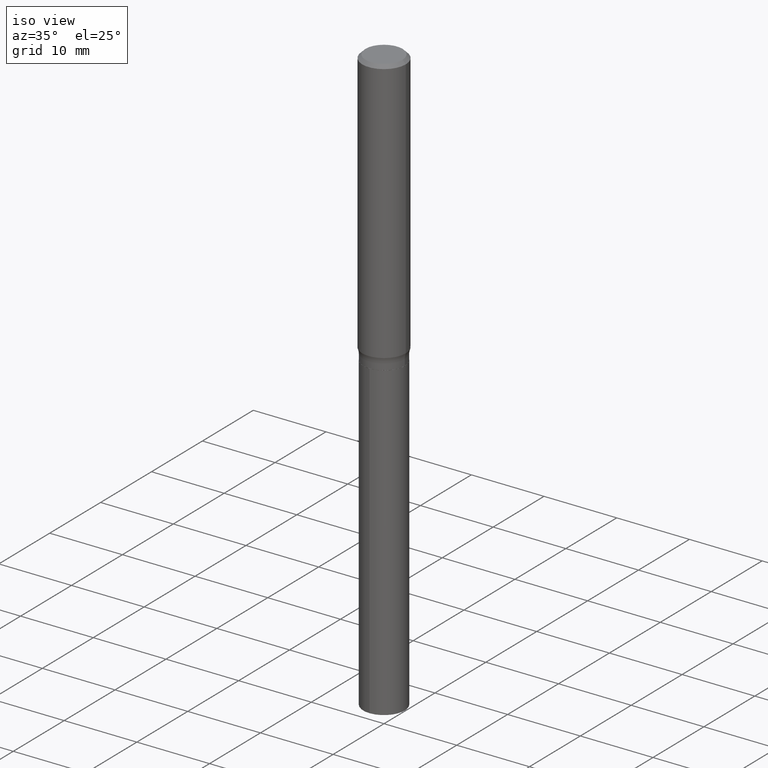
[diagram: clean part render]
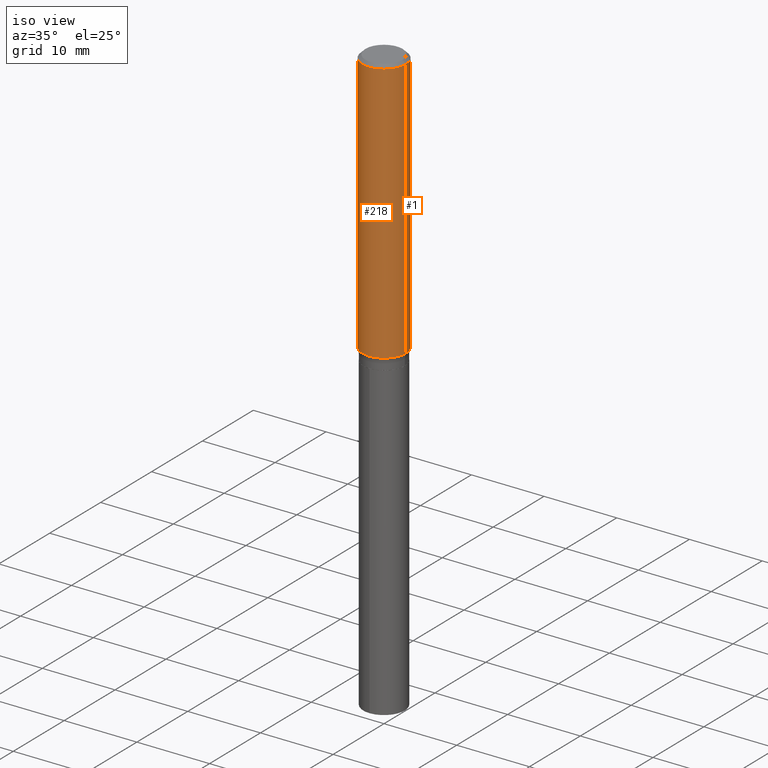
[diagram: same view with one multi-face feature highlighted, each face labeled with its STEP entity id]
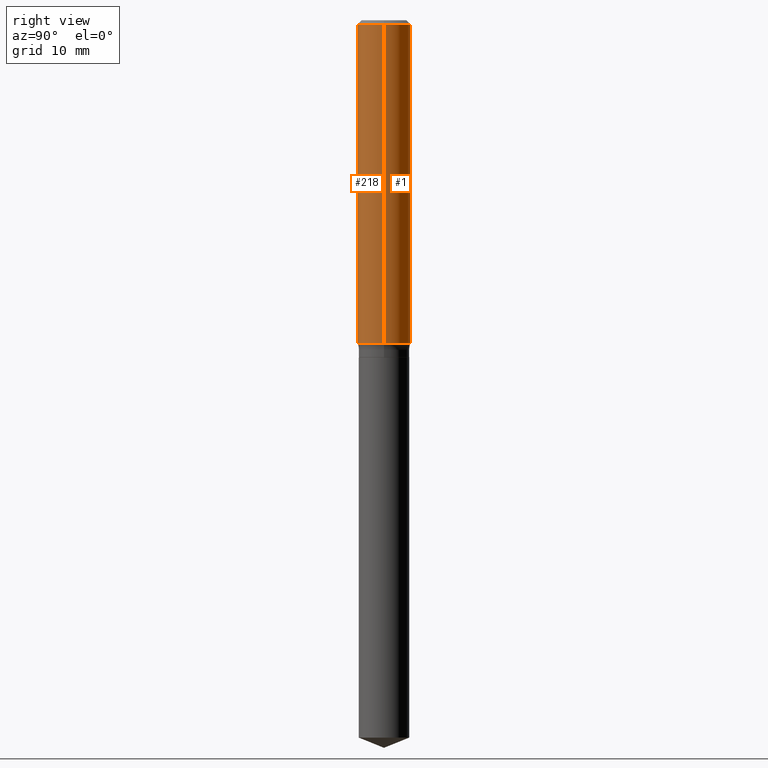
[diagram: same view with one multi-face feature highlighted, each face labeled with its STEP entity id]
A machine part, iso view. The highlighted faces form ONE feature: a constant-radius fillet chain: 2 tangent blend faces with common blend radius 2.9997 mm. The faces share edges in the B-rep.
A second angle (right view) of the same feature is appended — it is thin or edge-on in the first view.
Their STEP definitions:
[1] entity #218 (Cylinder):
#4 = VERTEX_POINT ( 'NONE', #216 ) ;
#13 = CARTESIAN_POINT ( 'NONE',  ( 3.502501020471370569E-29, -5.000643198279692524E-15, -1.432241135774360963 ) ) ;
#40 = AXIS2_PLACEMENT_3D ( 'NONE', #161, #74, #483 ) ;
#46 = EDGE_CURVE ( 'NONE', #348, #91, #439, .T. ) ;
#53 = EDGE_CURVE ( 'NONE', #4, #351, #185, .T. ) ;
#57 = DIRECTION ( 'NONE',  ( -2.445468806185136597E-29, 3.491481338843145583E-15, 1.000000000000000000 ) ) ;
#72 = DIRECTION ( 'NONE',  ( -2.445468806185136597E-29, 3.491481338843145583E-15, 1.000000000000000000 ) ) ;
#74 = DIRECTION ( 'NONE',  ( -2.445468806185136597E-29, 3.491481338843145583E-15, 1.000000000000000000 ) ) ;
#87 = CARTESIAN_POINT ( 'NONE',  ( 0.1181000000000002048, -5.825331090514442364E-15, -1.432241135774360963 ) ) ;
#91 = VERTEX_POINT ( 'NONE', #432 ) ;
#95 = AXIS2_PLACEMENT_3D ( 'NONE', #411, #72, #187 ) ;
#98 = ORIENTED_EDGE ( 'NONE', *, *, #455, .T. ) ;
#104 = CIRCLE ( 'NONE', #95, 0.1180999999999999966 ) ;
#134 = DIRECTION ( 'NONE',  ( -2.445468806185136877E-29, 3.491481338843145188E-15, 1.000000000000000000 ) ) ;
#140 = EDGE_CURVE ( 'NONE', #351, #91, #104, .T. ) ;
#161 = CARTESIAN_POINT ( 'NONE',  ( 0.000000000000000000, 0.000000000000000000, 0.000000000000000000 ) ) ;
#175 = CARTESIAN_POINT ( 'NONE',  ( 0.1181000000000001077, -8.246878922347488542E-16, 5.758764772215005345E-30 ) ) ;
#177 = DIRECTION ( 'NONE',  ( -2.445468806185136877E-29, 3.491481338843145188E-15, 1.000000000000000000 ) ) ;
#185 = LINE ( 'NONE', #250, #327 ) ;
#187 = DIRECTION ( 'NONE',  ( 1.000000000000000000, -6.982962677686266711E-15, 0.000000000000000000 ) ) ;
#216 = CARTESIAN_POINT ( 'NONE',  ( -0.1181000000000002048, -4.161492227347013538E-15, -1.432241135774360963 ) ) ;
#218 = ADVANCED_FACE ( 'NONE', ( #492 ), #453, .T. ) ;
#236 = VECTOR ( 'NONE', #134, 39.37007874015748143 ) ;
#250 = CARTESIAN_POINT ( 'NONE',  ( -0.1181000000000001077, 8.391509709326790846E-16, -5.809262341591049389E-30 ) ) ;
#298 = DIRECTION ( 'NONE',  ( 1.000000000000000000, -6.982962677686269077E-15, 0.000000000000000000 ) ) ;
#327 = VECTOR ( 'NONE', #177, 39.37007874015748143 ) ;
#348 = VERTEX_POINT ( 'NONE', #87 ) ;
#351 = VERTEX_POINT ( 'NONE', #362 ) ;
#353 = ORIENTED_EDGE ( 'NONE', *, *, #140, .F. ) ;
#362 = CARTESIAN_POINT ( 'NONE',  ( -0.1180999999999999966, -1.692096424165969981E-15, -0.01771500000000010913 ) ) ;
#386 = ORIENTED_EDGE ( 'NONE', *, *, #53, .F. ) ;
#411 = CARTESIAN_POINT ( 'NONE',  ( 4.332147990156996744E-31, -6.185159191760670395E-17, -0.01771500000000010913 ) ) ;
#421 = CIRCLE ( 'NONE', #443, 0.1181000000000001909 ) ;
#423 = ORIENTED_EDGE ( 'NONE', *, *, #46, .T. ) ;
#432 = CARTESIAN_POINT ( 'NONE',  ( 0.1180999999999999966, -8.865394841523547570E-16, -0.01771500000000010913 ) ) ;
#439 = LINE ( 'NONE', #175, #236 ) ;
#443 = AXIS2_PLACEMENT_3D ( 'NONE', #13, #57, #298 ) ;
#453 = CYLINDRICAL_SURFACE ( 'NONE', #40, 0.1181000000000001077 ) ;
#455 = EDGE_CURVE ( 'NONE', #4, #348, #421, .T. ) ;
#467 = EDGE_LOOP ( 'NONE', ( #386, #98, #423, #353 ) ) ;
#483 = DIRECTION ( 'NONE',  ( 1.000000000000000000, -6.982962677686266711E-15, 4.876176775795935793E-29 ) ) ;
#492 = FACE_OUTER_BOUND ( 'NONE', #467, .T. ) ;
[2] entity #1 (Cylinder):
#1 = ADVANCED_FACE ( 'NONE', ( #329 ), #213, .T. ) ;
#4 = VERTEX_POINT ( 'NONE', #216 ) ;
#39 = ORIENTED_EDGE ( 'NONE', *, *, #46, .F. ) ;
#42 = EDGE_CURVE ( 'NONE', #91, #351, #419, .T. ) ;
#46 = EDGE_CURVE ( 'NONE', #348, #91, #439, .T. ) ;
#53 = EDGE_CURVE ( 'NONE', #4, #351, #185, .T. ) ;
#54 = DIRECTION ( 'NONE',  ( 1.000000000000000000, -6.982962677686266711E-15, 4.876176775795935793E-29 ) ) ;
#61 = AXIS2_PLACEMENT_3D ( 'NONE', #144, #407, #289 ) ;
#81 = EDGE_CURVE ( 'NONE', #348, #4, #137, .T. ) ;
#87 = CARTESIAN_POINT ( 'NONE',  ( 0.1181000000000002048, -5.825331090514442364E-15, -1.432241135774360963 ) ) ;
#91 = VERTEX_POINT ( 'NONE', #432 ) ;
#94 = DIRECTION ( 'NONE',  ( -2.445468806185136597E-29, 3.491481338843145583E-15, 1.000000000000000000 ) ) ;
#134 = DIRECTION ( 'NONE',  ( -2.445468806185136877E-29, 3.491481338843145188E-15, 1.000000000000000000 ) ) ;
#137 = CIRCLE ( 'NONE', #61, 0.1181000000000001909 ) ;
#144 = CARTESIAN_POINT ( 'NONE',  ( 3.502501020471370569E-29, -5.000643198279692524E-15, -1.432241135774360963 ) ) ;
#154 = EDGE_LOOP ( 'NONE', ( #454, #273, #179, #39 ) ) ;
#175 = CARTESIAN_POINT ( 'NONE',  ( 0.1181000000000001077, -8.246878922347488542E-16, 5.758764772215005345E-30 ) ) ;
#177 = DIRECTION ( 'NONE',  ( -2.445468806185136877E-29, 3.491481338843145188E-15, 1.000000000000000000 ) ) ;
#179 = ORIENTED_EDGE ( 'NONE', *, *, #42, .F. ) ;
#185 = LINE ( 'NONE', #250, #327 ) ;
#201 = AXIS2_PLACEMENT_3D ( 'NONE', #333, #366, #54 ) ;
#213 = CYLINDRICAL_SURFACE ( 'NONE', #201, 0.1181000000000001077 ) ;
#216 = CARTESIAN_POINT ( 'NONE',  ( -0.1181000000000002048, -4.161492227347013538E-15, -1.432241135774360963 ) ) ;
#236 = VECTOR ( 'NONE', #134, 39.37007874015748143 ) ;
#250 = CARTESIAN_POINT ( 'NONE',  ( -0.1181000000000001077, 8.391509709326790846E-16, -5.809262341591049389E-30 ) ) ;
#273 = ORIENTED_EDGE ( 'NONE', *, *, #53, .T. ) ;
#289 = DIRECTION ( 'NONE',  ( 1.000000000000000000, -6.982962677686269077E-15, 0.000000000000000000 ) ) ;
#327 = VECTOR ( 'NONE', #177, 39.37007874015748143 ) ;
#329 = FACE_OUTER_BOUND ( 'NONE', #154, .T. ) ;
#333 = CARTESIAN_POINT ( 'NONE',  ( 0.000000000000000000, 0.000000000000000000, 0.000000000000000000 ) ) ;
#348 = VERTEX_POINT ( 'NONE', #87 ) ;
#351 = VERTEX_POINT ( 'NONE', #362 ) ;
#362 = CARTESIAN_POINT ( 'NONE',  ( -0.1180999999999999966, -1.692096424165969981E-15, -0.01771500000000010913 ) ) ;
#366 = DIRECTION ( 'NONE',  ( -2.445468806185136597E-29, 3.491481338843145583E-15, 1.000000000000000000 ) ) ;
#371 = CARTESIAN_POINT ( 'NONE',  ( 4.332147990156996744E-31, -6.185159191760670395E-17, -0.01771500000000010913 ) ) ;
#407 = DIRECTION ( 'NONE',  ( -2.445468806185136597E-29, 3.491481338843145583E-15, 1.000000000000000000 ) ) ;
#414 = AXIS2_PLACEMENT_3D ( 'NONE', #371, #94, #469 ) ;
#419 = CIRCLE ( 'NONE', #414, 0.1180999999999999966 ) ;
#432 = CARTESIAN_POINT ( 'NONE',  ( 0.1180999999999999966, -8.865394841523547570E-16, -0.01771500000000010913 ) ) ;
#439 = LINE ( 'NONE', #175, #236 ) ;
#454 = ORIENTED_EDGE ( 'NONE', *, *, #81, .T. ) ;
#469 = DIRECTION ( 'NONE',  ( 1.000000000000000000, -6.982962677686266711E-15, 0.000000000000000000 ) ) ;